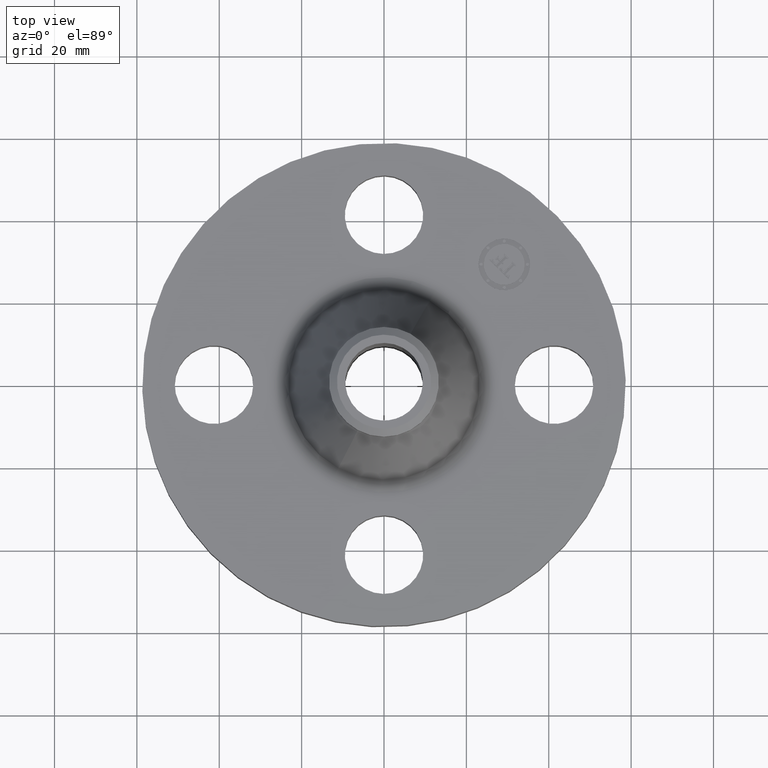
[diagram: clean part render]
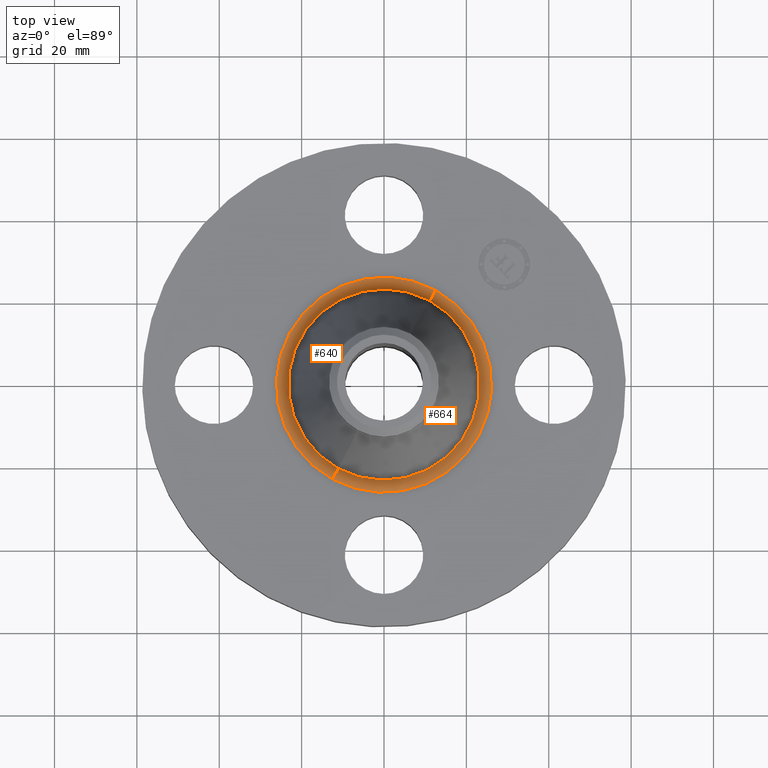
[diagram: same view with one multi-face feature highlighted, each face labeled with its STEP entity id]
A machine part, top view. The highlighted faces form ONE feature: a constant-radius fillet chain: 2 tangent blend faces with common blend radius 3.048 mm. The faces share edges in the B-rep.
Their STEP definitions:
[1] entity #664 (Torus):
#269=AXIS2_PLACEMENT_3D('Circle Axis2P3D',#267,#268,$) ;
#617=AXIS2_PLACEMENT_3D('Circle Axis2P3D',#615,#616,$) ;
#631=AXIS2_PLACEMENT_3D('Circle Axis2P3D',#629,#630,$) ;
#651=AXIS2_PLACEMENT_3D('Torus Axis2P3D',#648,#649,#650) ;
#655=AXIS2_PLACEMENT_3D('Circle Axis2P3D',#653,#654,$) ;
#262=CARTESIAN_POINT('Vertex',(-0.493032242462,-0.902489466236,0.620000000003)) ;
#264=CARTESIAN_POINT('Vertex',(0.493032242461,0.902489466232,0.620000000003)) ;
#267=CARTESIAN_POINT('Axis2P3D Location',(-1.28118688012E-011,3.07858026036E-011,0.620000000002)) ;
#615=CARTESIAN_POINT('Axis2P3D Location',(-0.493032242463,-0.902489466236,0.740000000003)) ;
#619=CARTESIAN_POINT('Vertex',(-0.438090692601,-0.801919633801,0.704403161619)) ;
#626=CARTESIAN_POINT('Vertex',(0.438090692601,0.801919633801,0.704403161619)) ;
#629=CARTESIAN_POINT('Axis2P3D Location',(0.493032242463,0.902489466236,0.740000000003)) ;
#648=CARTESIAN_POINT('Axis2P3D Location',(0.,0.,0.740000000003)) ;
#653=CARTESIAN_POINT('Axis2P3D Location',(0.,0.,0.704403161619)) ;
#268=DIRECTION('Axis2P3D Direction',(0.,0.,-0.0393700787402)) ;
#616=DIRECTION('Axis2P3D Direction',(0.0345504945626,-0.0188750212049,0.)) ;
#630=DIRECTION('Axis2P3D Direction',(-0.0345504945626,0.0188750212049,0.)) ;
#649=DIRECTION('Axis2P3D Direction',(0.,0.,-0.0393700787402)) ;
#650=DIRECTION('Axis2P3D XDirection',(0.0188750212049,0.0345504945626,0.)) ;
#654=DIRECTION('Axis2P3D Direction',(-0.,0.,-0.0393700787402)) ;
#659=ORIENTED_EDGE('',*,*,#271,.F.) ;
#660=ORIENTED_EDGE('',*,*,#633,.T.) ;
#661=ORIENTED_EDGE('',*,*,#657,.T.) ;
#662=ORIENTED_EDGE('',*,*,#621,.F.) ;
#664=ADVANCED_FACE('PartBody',(#663),#652,.F.) ;
#270=CIRCLE('generated circle',#269,1.02838126625) ;
#618=CIRCLE('generated circle',#617,0.12) ;
#632=CIRCLE('generated circle',#631,0.12) ;
#656=CIRCLE('generated circle',#655,0.913782552919) ;
#652=TOROIDAL_SURFACE('homeo Torus',#651,1.02838126625,0.12) ;
#271=EDGE_CURVE('',#265,#263,#270,.T.) ;
#621=EDGE_CURVE('',#263,#620,#618,.T.) ;
#633=EDGE_CURVE('',#265,#627,#632,.T.) ;
#657=EDGE_CURVE('',#627,#620,#656,.T.) ;
#658=EDGE_LOOP('',(#659,#660,#661,#662)) ;
#663=FACE_OUTER_BOUND('',#658,.T.) ;
#263=VERTEX_POINT('',#262) ;
#265=VERTEX_POINT('',#264) ;
#620=VERTEX_POINT('',#619) ;
#627=VERTEX_POINT('',#626) ;
[2] entity #640 (Torus):
#260=AXIS2_PLACEMENT_3D('Circle Axis2P3D',#258,#259,$) ;
#613=AXIS2_PLACEMENT_3D('Torus Axis2P3D',#610,#611,#612) ;
#617=AXIS2_PLACEMENT_3D('Circle Axis2P3D',#615,#616,$) ;
#624=AXIS2_PLACEMENT_3D('Circle Axis2P3D',#622,#623,$) ;
#631=AXIS2_PLACEMENT_3D('Circle Axis2P3D',#629,#630,$) ;
#258=CARTESIAN_POINT('Axis2P3D Location',(4.36655086542E-011,-6.76973787614E-014,0.620000000002)) ;
#262=CARTESIAN_POINT('Vertex',(-0.493032242462,-0.902489466236,0.620000000003)) ;
#264=CARTESIAN_POINT('Vertex',(0.493032242461,0.902489466232,0.620000000003)) ;
#610=CARTESIAN_POINT('Axis2P3D Location',(0.,0.,0.740000000003)) ;
#615=CARTESIAN_POINT('Axis2P3D Location',(-0.493032242463,-0.902489466236,0.740000000003)) ;
#619=CARTESIAN_POINT('Vertex',(-0.438090692601,-0.801919633801,0.704403161619)) ;
#622=CARTESIAN_POINT('Axis2P3D Location',(0.,0.,0.704403161619)) ;
#626=CARTESIAN_POINT('Vertex',(0.438090692601,0.801919633801,0.704403161619)) ;
#629=CARTESIAN_POINT('Axis2P3D Location',(0.493032242463,0.902489466236,0.740000000003)) ;
#259=DIRECTION('Axis2P3D Direction',(0.,0.,-0.0393700787402)) ;
#611=DIRECTION('Axis2P3D Direction',(0.,0.,-0.0393700787402)) ;
#612=DIRECTION('Axis2P3D XDirection',(-0.0188750212049,-0.0345504945626,0.)) ;
#616=DIRECTION('Axis2P3D Direction',(0.0345504945626,-0.0188750212049,0.)) ;
#623=DIRECTION('Axis2P3D Direction',(-0.,0.,-0.0393700787402)) ;
#630=DIRECTION('Axis2P3D Direction',(-0.0345504945626,0.0188750212049,0.)) ;
#635=ORIENTED_EDGE('',*,*,#266,.F.) ;
#636=ORIENTED_EDGE('',*,*,#621,.T.) ;
#637=ORIENTED_EDGE('',*,*,#628,.T.) ;
#638=ORIENTED_EDGE('',*,*,#633,.F.) ;
#640=ADVANCED_FACE('PartBody',(#639),#614,.F.) ;
#261=CIRCLE('generated circle',#260,1.02838126625) ;
#618=CIRCLE('generated circle',#617,0.12) ;
#625=CIRCLE('generated circle',#624,0.913782552919) ;
#632=CIRCLE('generated circle',#631,0.12) ;
#614=TOROIDAL_SURFACE('homeo Torus',#613,1.02838126625,0.12) ;
#266=EDGE_CURVE('',#263,#265,#261,.T.) ;
#621=EDGE_CURVE('',#263,#620,#618,.T.) ;
#628=EDGE_CURVE('',#620,#627,#625,.T.) ;
#633=EDGE_CURVE('',#265,#627,#632,.T.) ;
#634=EDGE_LOOP('',(#635,#636,#637,#638)) ;
#639=FACE_OUTER_BOUND('',#634,.T.) ;
#263=VERTEX_POINT('',#262) ;
#265=VERTEX_POINT('',#264) ;
#620=VERTEX_POINT('',#619) ;
#627=VERTEX_POINT('',#626) ;